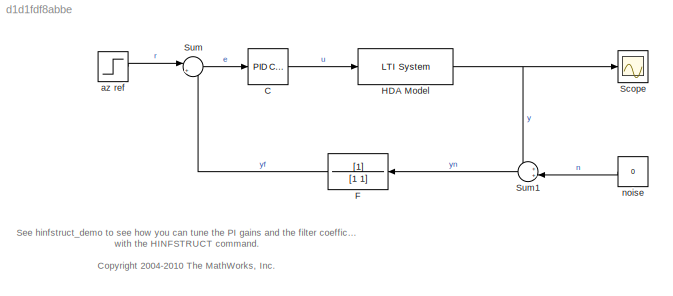
MODEL slx_d1d1fdf8abbe
KIND model
CONFIG AbsTol = 1e-6
CONFIG EnableMultiTasking = off
CONFIG FixedStep = auto
CONFIG MaxStep = auto
CONFIG MinStep = auto
CONFIG RelTol = 1e-3
CONFIG SampleTimeConstraint = Unconstrained
CONFIG SolverName = ode23t
CONFIG StartTime = 0.0
CONFIG StopTime = 5
WORKSPACE source: mxarray member
WORKSPACE G: object (value not decoded)
BLOCK [Reference] C  REF=slpidlib/PID Controller
  SourceBlock = slpidlib/PID Controller
  SourceType = PID 1dof
BLOCK [TransferFcn] F
  Denominator = [1 1]
BLOCK [Reference] HDA Model  REF=cstblocks/LTI System
  SourceBlock = cstblocks/LTI System
  SourceType = LTI Block
BLOCK [Scope] Scope
  Floating = off
  NumInputPorts = 1
  ScopeSpecificationString = Simulink.scopes.TimeScopeBlockCfg('CurrentConfiguration', extmgr.ConfigurationSet(extmgr.Configuration('Core','General UI',true,'FigureColor',[0.156862745098039 0.156862745098039 0.156862745098039]),extmgr.Configuration('Core','Source UI',true),extmgr.Configuration('Sources','WiredSimulink',true,'DataLoggingSaveFormat','StructureWithTime','DataLoggingLimitDataPoints',true,'DataLoggingDecimation','...<+1613ch>
BLOCK [Sum] Sum
  Inputs = |+-
  SaturateOnIntegerOverflow = on
BLOCK [Sum] Sum1
  Inputs = ++|
  SaturateOnIntegerOverflow = on
BLOCK [Step] az ref
  After = 200
  NameLocation = top
  SampleTime = 0
BLOCK [Constant] noise
  Value = 0
ANNOTATION (root): See hinfstruct_demo to see how you can tune the PI gains and the filter coefficient with the HINFSTRUCT command. <copyright redacted>
LINE C:1 -> HDA Model:1
LINE F:1 -> Sum:2
NET HDA Model:1 -> Scope:1, Sum1:1
LINE Sum1:1 -> F:1
LINE Sum:1 -> C:1
LINE az ref:1 -> Sum:1
LINE noise:1 -> Sum1:2
note: NET lines group one-source signal fan-out (src -> all destinations, sorted); 1:1 wires keep LINE
